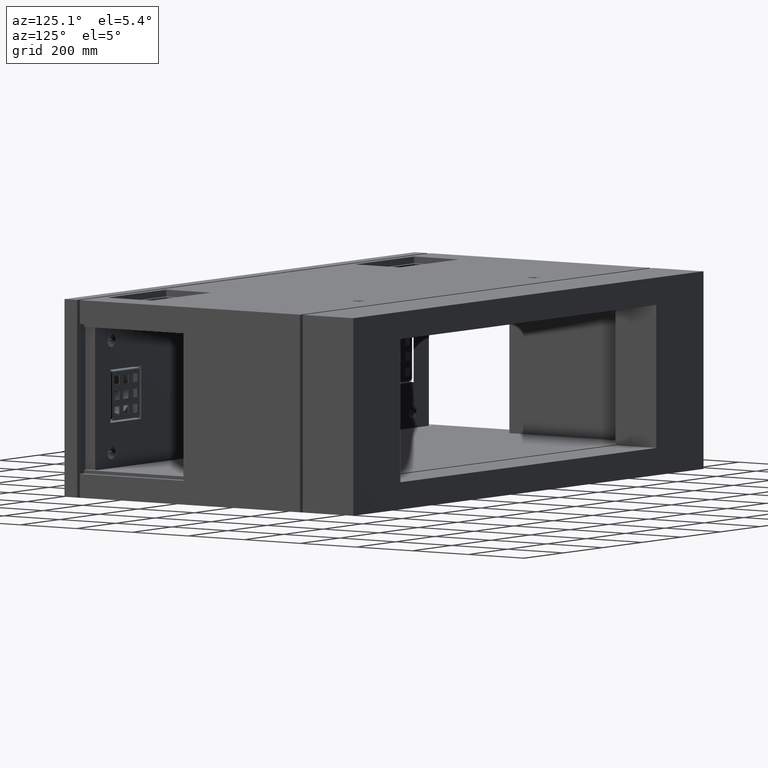
[diagram: clean part render]
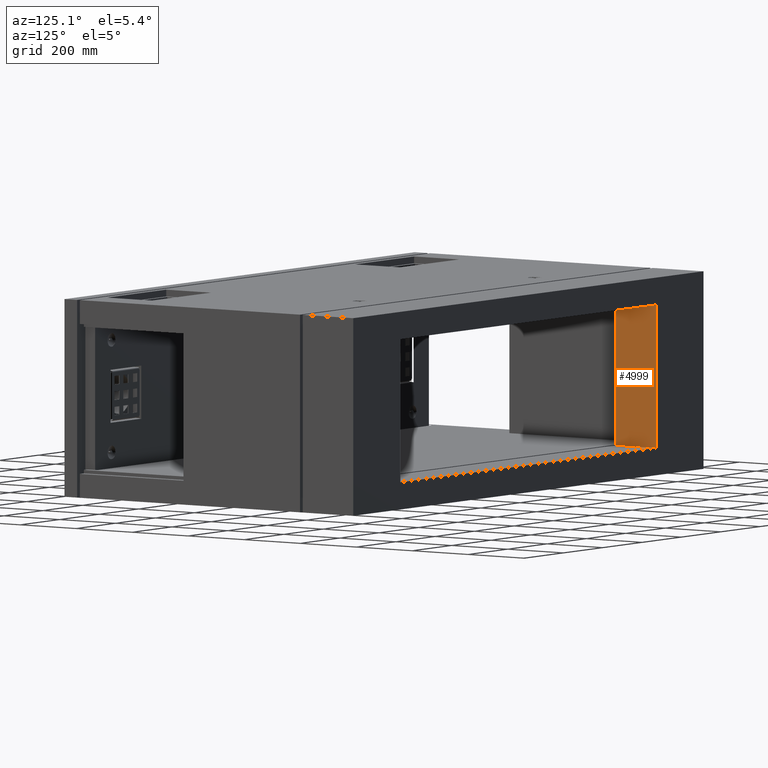
[diagram: same view with one face highlighted and labeled with its STEP entity id]
A machine part, auxiliary view. The second image highlights one B-rep face of the part: STEP entity #4999.
In plain terms, the highlighted planar face has unit normal (-1, 0, 0).
Its self-contained STEP definition (entity closure, byte-faithful):
#142 = ORIENTED_EDGE ( 'NONE', *, *, #2513, .F. ) ;
#336 = CARTESIAN_POINT ( 'NONE',  ( -649.9999999999998863, 851.0000000000000000, -209.9999999999999716 ) ) ;
#1287 = DIRECTION ( 'NONE',  ( 4.336808689942018506E-18, 1.000000000000000000, 0.000000000000000000 ) ) ;
#1361 = VECTOR ( 'NONE', #1751, 1000.000000000000000 ) ;
#1751 = DIRECTION ( 'NONE',  ( 4.336808689942018506E-18, -1.880790961315660815E-35, 1.000000000000000000 ) ) ;
#2058 = VERTEX_POINT ( 'NONE', #7691 ) ;
#2072 = VECTOR ( 'NONE', #1287, 1000.000000000000000 ) ;
#2116 = CARTESIAN_POINT ( 'NONE',  ( -649.9999999999998863, 885.9999999999998863, 209.9999999999999716 ) ) ;
#2167 = VECTOR ( 'NONE', #6267, 1000.000000000000000 ) ;
#2272 = CARTESIAN_POINT ( 'NONE',  ( -649.9999999999998863, 1031.000000000000000, -209.9999999999999716 ) ) ;
#2513 = EDGE_CURVE ( 'NONE', #2058, #3036, #2847, .T. ) ;
#2830 = EDGE_CURVE ( 'NONE', #2058, #3775, #8750, .T. ) ;
#2847 = LINE ( 'NONE', #4775, #1361 ) ;
#2913 = EDGE_CURVE ( 'NONE', #3775, #7012, #5406, .T. ) ;
#2929 = ORIENTED_EDGE ( 'NONE', *, *, #2830, .T. ) ;
#3036 = VERTEX_POINT ( 'NONE', #2116 ) ;
#3225 = ORIENTED_EDGE ( 'NONE', *, *, #4228, .F. ) ;
#3775 = VERTEX_POINT ( 'NONE', #2272 ) ;
#3964 = DIRECTION ( 'NONE',  ( 4.336808689942018506E-18, 1.000000000000000000, 0.000000000000000000 ) ) ;
#4228 = EDGE_CURVE ( 'NONE', #3036, #7012, #7321, .T. ) ;
#4775 = CARTESIAN_POINT ( 'NONE',  ( -649.9999999999998863, 885.9999999999998863, 209.9999999999999716 ) ) ;
#4999 = ADVANCED_FACE ( 'NONE', ( #11778 ), #11613, .F. ) ;
#5406 = LINE ( 'NONE', #11146, #9053 ) ;
#6124 = EDGE_LOOP ( 'NONE', ( #142, #2929, #10883, #3225 ) ) ;
#6267 = DIRECTION ( 'NONE',  ( 4.336808689942018506E-18, 1.000000000000000000, 0.000000000000000000 ) ) ;
#6364 = AXIS2_PLACEMENT_3D ( 'NONE', #10856, #9850, #3964 ) ;
#7012 = VERTEX_POINT ( 'NONE', #10081 ) ;
#7321 = LINE ( 'NONE', #9070, #2167 ) ;
#7691 = CARTESIAN_POINT ( 'NONE',  ( -649.9999999999998863, 885.9999999999998863, -209.9999999999999716 ) ) ;
#8750 = LINE ( 'NONE', #336, #2072 ) ;
#9053 = VECTOR ( 'NONE', #9510, 1000.000000000000000 ) ;
#9070 = CARTESIAN_POINT ( 'NONE',  ( -649.9999999999998863, 851.0000000000000000, 209.9999999999999716 ) ) ;
#9510 = DIRECTION ( 'NONE',  ( 4.336808689942018506E-18, -1.880790961315660815E-35, 1.000000000000000000 ) ) ;
#9850 = DIRECTION ( 'NONE',  ( -1.000000000000000000, 4.336808689942018506E-18, 4.336808689942018506E-18 ) ) ;
#10081 = CARTESIAN_POINT ( 'NONE',  ( -649.9999999999998863, 1031.000000000000000, 209.9999999999999716 ) ) ;
#10856 = CARTESIAN_POINT ( 'NONE',  ( -649.9999999999998863, 851.0000000000000000, 209.9999999999999716 ) ) ;
#10883 = ORIENTED_EDGE ( 'NONE', *, *, #2913, .T. ) ;
#11146 = CARTESIAN_POINT ( 'NONE',  ( -649.9999999999998863, 1031.000000000000000, 209.9999999999999716 ) ) ;
#11613 = PLANE ( 'NONE',  #6364 ) ;
#11778 = FACE_OUTER_BOUND ( 'NONE', #6124, .T. ) ;